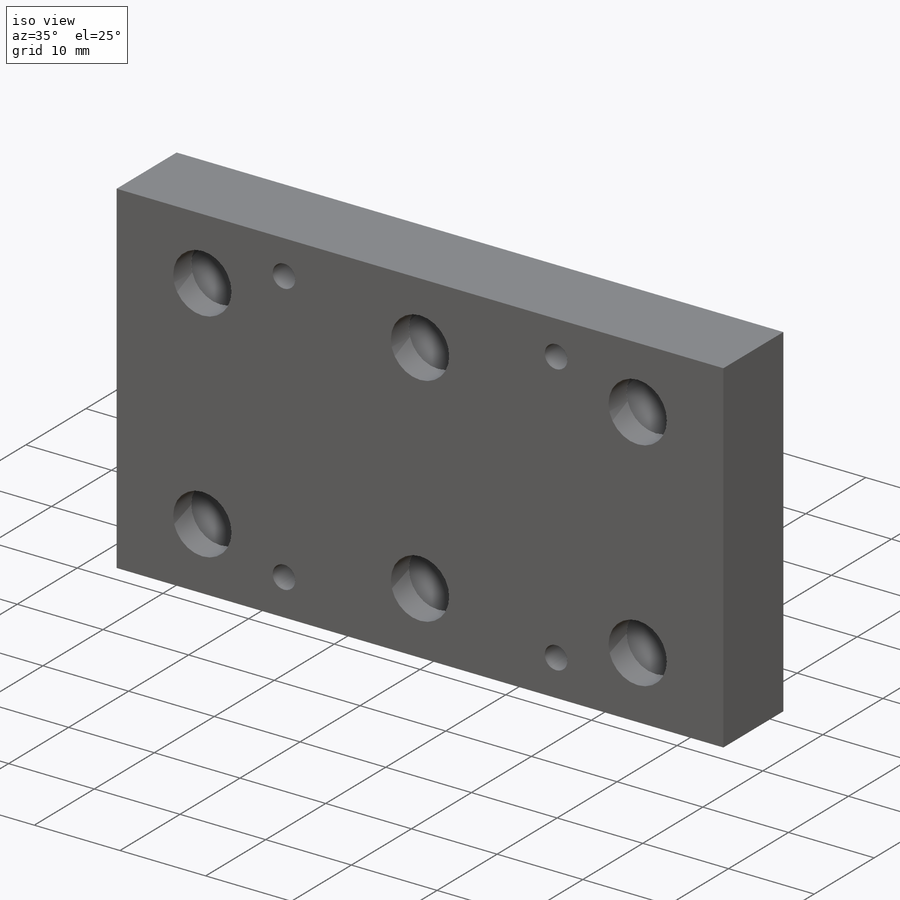
[diagram: iso view]
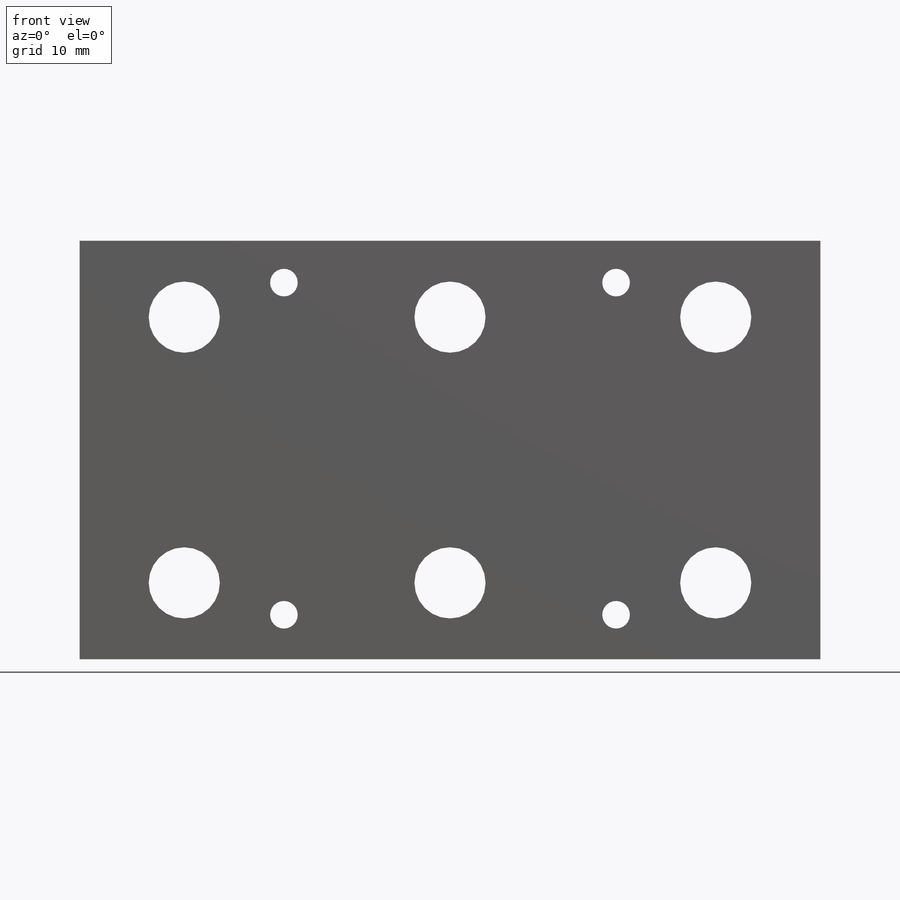
[diagram: front view]
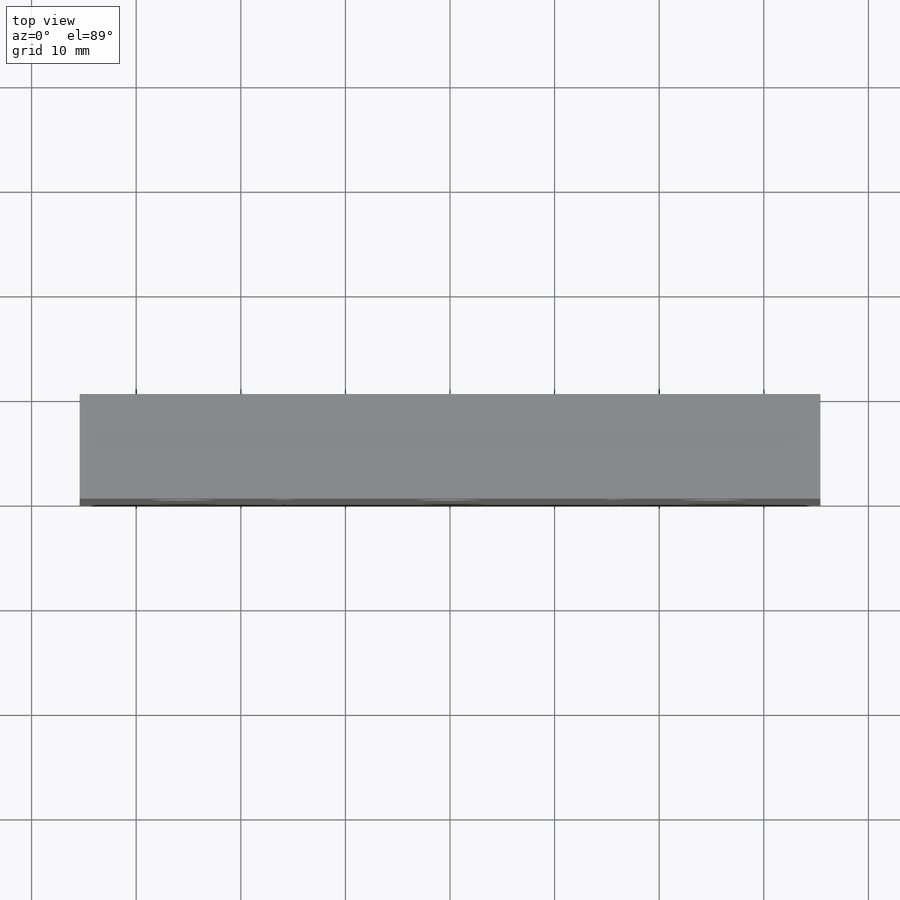
[diagram: top view]
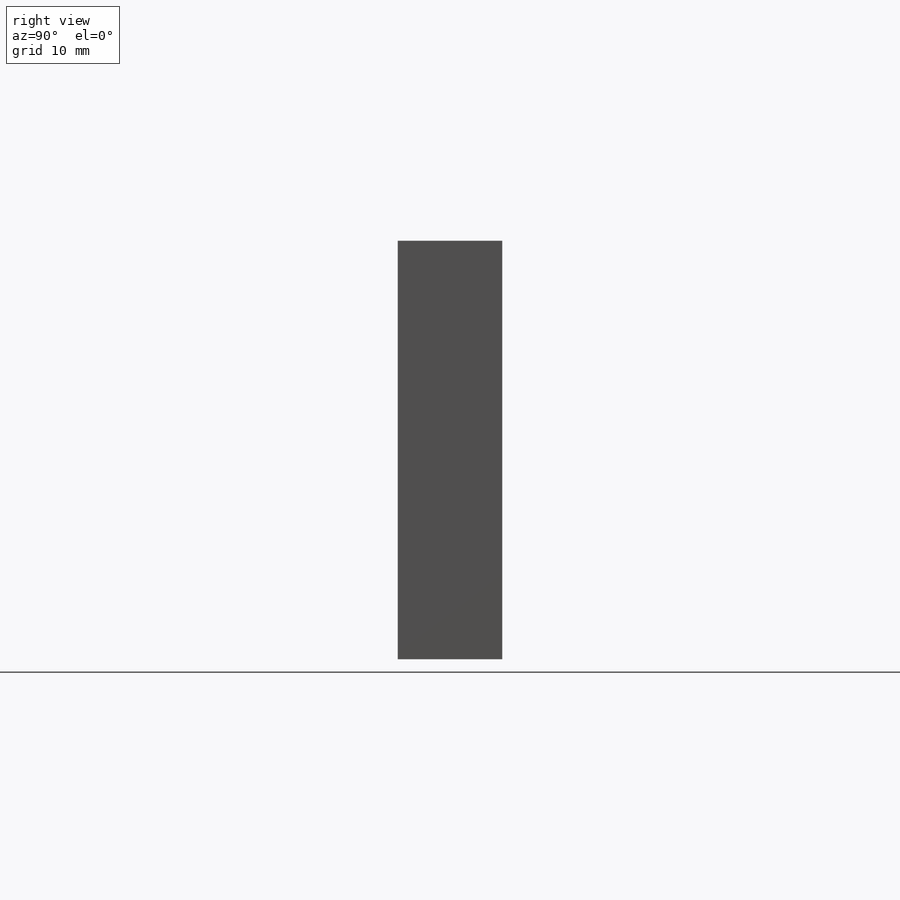
[diagram: right view]
SOLIDWORKS PART (.sldprt)
format: sldprt  version: not decoded by parser v0  size: 260,096 bytes
history: native  units: mm
features: sketch x4, cut_extrude x3, material x1, extrude x1 (+12 scaffold rows collapsed)
feature tree (21):
  scaffold x12  (default folders/planes/origin — collapsed)
  material  "Material <not specified>"
  sketch  "Sketch1"  dims[c1.D1=~73.745526mm c1.D2=~115.580723mm c2.D1=65.43mm c2.D2=40.0mm c3.D1=40.0mm c4.D1=90.0deg c5.D1=40.0mm c6.D1=90.0deg c7.D1=40.0mm c8.D1=90.0deg c9.D1=40.0mm c10.D1=90.0deg c11.D1=70.8mm c11.D3=~0.268674mm]
  extrude  "Boss-Extrude1"  Depth=10mm
  sketch  "Sketch2"  dims[c1.D1=2.64mm c1.D4=31.75mm c1.D5=31.75mm c1.D6=31.75mm c1.D7=31.75mm c2.D6=4.0mm c2.D7=14.0mm c3.D6=16.0mm c3.D7=21.35mm c3.D8=17.7mm c4.D7=~1.102815mm c4.D2=2.0 c4.D3=2.0]
  cut_extrude  "Cut-Extrude1"  [1 undecoded]
  sketch  "Sketch3"  dims[c1.D1=6.8mm c1.D6=6.8mm c1.D4=25.4mm c1.D5=76.2mm c2.D6=25.4mm c2.D7=76.2mm c3.D6=12.7mm c3.D5=50.8mm c3.D2=3.0 c3.D3=2.0]
  cut_extrude  "Cut-Extrude2"  [1 undecoded]
  sketch  "Sketch4"  dims[c1.D1=10.75mm c1.D4=10.75mm c1.D5=10.75mm c2.D4=10.0mm c2.D5=10.0mm c2.D6=70.8mm c2.D2=3.0 c2.D3=2.0]
  cut_extrude  "Cut-Extrude3"  Depth=7mm
decode coverage: 6 of 8 modeling features carry decoded parameters
note: ~ marks probable driven/reference dimensions
note: 2 parameter values undecoded
note: suppression state not decoded; provenance and decode notes live in map.json
